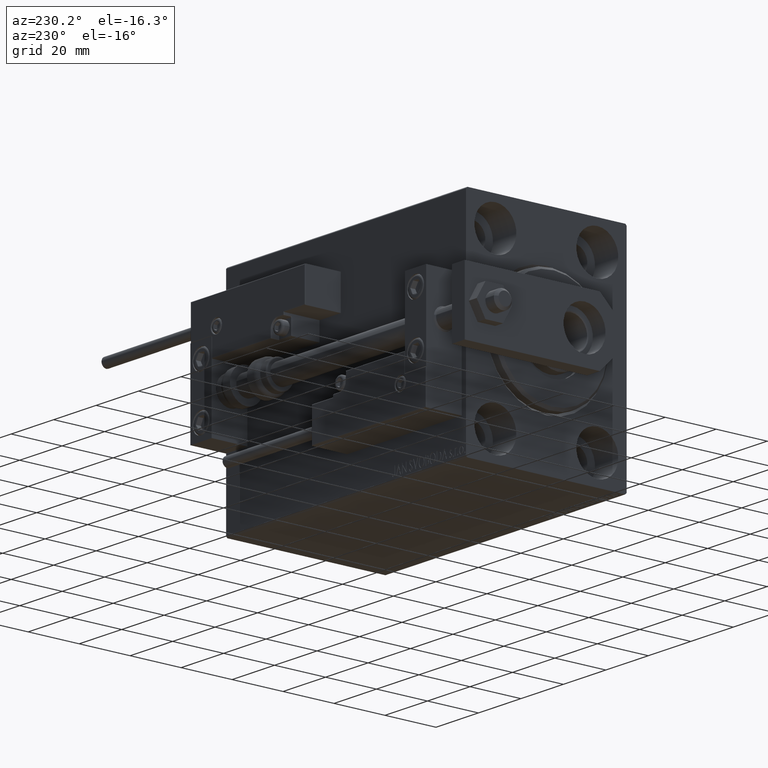
[diagram: clean part render]
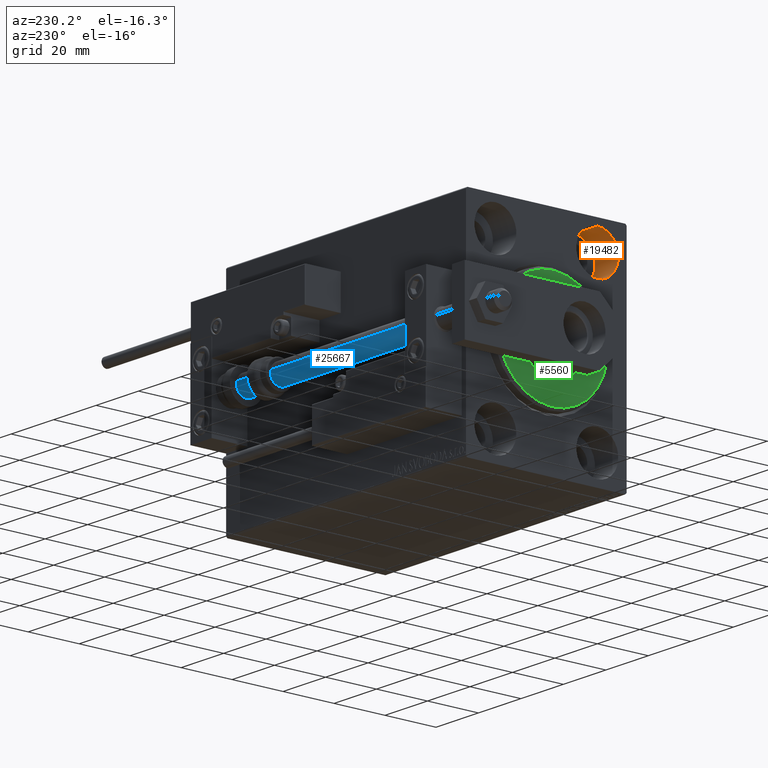
[diagram: same view with three faces highlighted in distinct colors, each labeled with its STEP entity id]
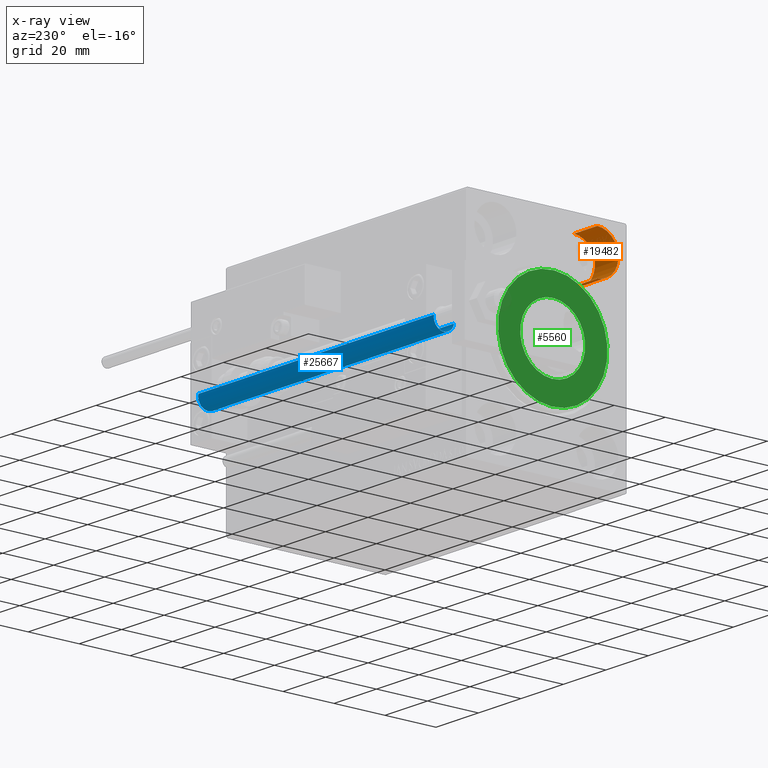
[diagram: x-ray of the same camera — body ghosted, the three highlighted faces saturated]
A machine part, auxiliary view with three faces highlighted in distinct colors.
The next image is the same camera in x-ray (body ghosted, the three faces saturated) — at least one of them is partly hidden behind the body in this view.
Their STEP definitions:

[orange] entity #19482 — the highlighted cylindrical surface (edge-blend (fillet) strip) has radius 8.25 mm, axis along (-1, -0, -0).
#906 = CARTESIAN_POINT ( 'NONE',  ( 11.00000000000000000, -19.99999999999999645, 31.50000000000000000 ) ) ;
#1256 = DIRECTION ( 'NONE',  ( 0.000000000000000000, 0.000000000000000000, 1.000000000000000000 ) ) ;
#1397 = DIRECTION ( 'NONE',  ( 0.000000000000000000, 0.000000000000000000, 1.000000000000000000 ) ) ;
#1634 = DIRECTION ( 'NONE',  ( -1.000000000000000000, -0.000000000000000000, -0.000000000000000000 ) ) ;
#2222 = AXIS2_PLACEMENT_3D ( 'NONE', #906, #28017, #1397 ) ;
#2386 = LINE ( 'NONE', #41142, #8855 ) ;
#5538 = CARTESIAN_POINT ( 'NONE',  ( 11.00000000000000000, -19.99999999999999645, 31.50000000000000000 ) ) ;
#5720 = EDGE_LOOP ( 'NONE', ( #25723, #21564, #9843, #15919 ) ) ;
#5765 = CARTESIAN_POINT ( 'NONE',  ( 0.000000000000000000, -19.99999999999999645, 39.74999999999999289 ) ) ;
#6825 = CARTESIAN_POINT ( 'NONE',  ( 11.00000000000000000, -19.99999999999999645, 39.74999999999999289 ) ) ;
#8600 = CARTESIAN_POINT ( 'NONE',  ( 11.00000000000000000, -19.99999999999999645, 23.25000000000000355 ) ) ;
#8855 = VECTOR ( 'NONE', #1634, 1000.000000000000000 ) ;
#9610 = LINE ( 'NONE', #6825, #31555 ) ;
#9843 = ORIENTED_EDGE ( 'NONE', *, *, #20276, .T. ) ;
#10565 = EDGE_CURVE ( 'NONE', #49992, #47751, #2386, .T. ) ;
#14427 = CIRCLE ( 'NONE', #20877, 8.249999999999992895 ) ;
#15919 = ORIENTED_EDGE ( 'NONE', *, *, #24802, .F. ) ;
#16535 = AXIS2_PLACEMENT_3D ( 'NONE', #5538, #24299, #1256 ) ;
#17219 = DIRECTION ( 'NONE',  ( -1.000000000000000000, -0.000000000000000000, -0.000000000000000000 ) ) ;
#19482 = ADVANCED_FACE ( 'NONE', ( #32553 ), #35855, .F. ) ;
#20276 = EDGE_CURVE ( 'NONE', #47751, #38723, #14427, .T. ) ;
#20877 = AXIS2_PLACEMENT_3D ( 'NONE', #48532, #41175, #33334 ) ;
#21564 = ORIENTED_EDGE ( 'NONE', *, *, #10565, .T. ) ;
#24299 = DIRECTION ( 'NONE',  ( -1.000000000000000000, 0.000000000000000000, 0.000000000000000000 ) ) ;
#24802 = EDGE_CURVE ( 'NONE', #35370, #38723, #9610, .T. ) ;
#25723 = ORIENTED_EDGE ( 'NONE', *, *, #39055, .F. ) ;
#28017 = DIRECTION ( 'NONE',  ( -1.000000000000000000, -0.000000000000000000, -0.000000000000000000 ) ) ;
#28647 = CIRCLE ( 'NONE', #16535, 8.249999999999992895 ) ;
#31555 = VECTOR ( 'NONE', #17219, 1000.000000000000000 ) ;
#32553 = FACE_OUTER_BOUND ( 'NONE', #5720, .T. ) ;
#33334 = DIRECTION ( 'NONE',  ( 0.000000000000000000, 0.000000000000000000, 1.000000000000000000 ) ) ;
#35370 = VERTEX_POINT ( 'NONE', #41383 ) ;
#35855 = CYLINDRICAL_SURFACE ( 'NONE', #2222, 8.249999999999992895 ) ;
#38723 = VERTEX_POINT ( 'NONE', #5765 ) ;
#39055 = EDGE_CURVE ( 'NONE', #49992, #35370, #28647, .T. ) ;
#41142 = CARTESIAN_POINT ( 'NONE',  ( 11.00000000000000000, -19.99999999999999645, 23.25000000000000355 ) ) ;
#41175 = DIRECTION ( 'NONE',  ( -1.000000000000000000, 0.000000000000000000, 0.000000000000000000 ) ) ;
#41383 = CARTESIAN_POINT ( 'NONE',  ( 11.00000000000000000, -19.99999999999999645, 39.74999999999999289 ) ) ;
#45042 = CARTESIAN_POINT ( 'NONE',  ( 0.000000000000000000, -19.99999999999999645, 23.25000000000000355 ) ) ;
#47751 = VERTEX_POINT ( 'NONE', #45042 ) ;
#48532 = CARTESIAN_POINT ( 'NONE',  ( 0.000000000000000000, -19.99999999999999645, 31.50000000000000000 ) ) ;
#49992 = VERTEX_POINT ( 'NONE', #8600 ) ;

[blue] entity #25667 — the highlighted cylindrical surface (edge-blend (fillet) strip) has radius 4 mm, axis along (-1, 0, 0).
#1324 = CARTESIAN_POINT ( 'NONE',  ( 0.000000000000000000, 0.000000000000000000, 2.000000000000029310 ) ) ;
#1527 = CARTESIAN_POINT ( 'NONE',  ( 0.000000000000000000, 0.000000000000000000, 113.0000000000000000 ) ) ;
#4436 = CARTESIAN_POINT ( 'NONE',  ( 0.000000000000000000, 0.000000000000000000, 113.0000000000000000 ) ) ;
#4626 = DIRECTION ( 'NONE',  ( -0.000000000000000000, -0.000000000000000000, 1.000000000000000000 ) ) ;
#5376 = LINE ( 'NONE', #32499, #43413 ) ;
#7132 = CIRCLE ( 'NONE', #26562, 4.000000000000000000 ) ;
#7614 = EDGE_CURVE ( 'NONE', #33119, #23160, #7132, .T. ) ;
#7925 = ORIENTED_EDGE ( 'NONE', *, *, #17533, .F. ) ;
#8123 = AXIS2_PLACEMENT_3D ( 'NONE', #1324, #4626, #36026 ) ;
#8184 = CARTESIAN_POINT ( 'NONE',  ( -4.000000000000000000, 0.000000000000000000, 113.0000000000000000 ) ) ;
#8629 = DIRECTION ( 'NONE',  ( -1.000000000000000000, 0.000000000000000000, 0.000000000000000000 ) ) ;
#9130 = DIRECTION ( 'NONE',  ( -0.000000000000000000, -0.000000000000000000, -1.000000000000000000 ) ) ;
#11482 = DIRECTION ( 'NONE',  ( -0.000000000000000000, -0.000000000000000000, -1.000000000000000000 ) ) ;
#12243 = CARTESIAN_POINT ( 'NONE',  ( 4.000000000000000000, 4.898587196589412829E-16, 2.000000000000029310 ) ) ;
#13519 = ORIENTED_EDGE ( 'NONE', *, *, #13933, .T. ) ;
#13933 = EDGE_CURVE ( 'NONE', #33119, #47714, #46199, .T. ) ;
#17533 = EDGE_CURVE ( 'NONE', #23160, #32114, #5376, .T. ) ;
#19438 = CARTESIAN_POINT ( 'NONE',  ( 4.000000000000000000, 4.898587196589412829E-16, 113.0000000000000000 ) ) ;
#19879 = DIRECTION ( 'NONE',  ( 0.000000000000000000, 0.000000000000000000, 1.000000000000000000 ) ) ;
#21287 = CYLINDRICAL_SURFACE ( 'NONE', #49387, 4.000000000000000000 ) ;
#23160 = VERTEX_POINT ( 'NONE', #19438 ) ;
#25667 = ADVANCED_FACE ( 'NONE', ( #35746 ), #21287, .T. ) ;
#26562 = AXIS2_PLACEMENT_3D ( 'NONE', #4436, #19879, #27492 ) ;
#27492 = DIRECTION ( 'NONE',  ( 1.000000000000000000, 0.000000000000000000, 0.000000000000000000 ) ) ;
#29999 = CIRCLE ( 'NONE', #8123, 4.000000000000000000 ) ;
#32019 = EDGE_LOOP ( 'NONE', ( #7925, #44218, #13519, #34970 ) ) ;
#32114 = VERTEX_POINT ( 'NONE', #12243 ) ;
#32499 = CARTESIAN_POINT ( 'NONE',  ( 4.000000000000000000, 4.898587196589412829E-16, 113.0000000000000000 ) ) ;
#33119 = VERTEX_POINT ( 'NONE', #45971 ) ;
#34970 = ORIENTED_EDGE ( 'NONE', *, *, #46838, .T. ) ;
#35746 = FACE_OUTER_BOUND ( 'NONE', #32019, .T. ) ;
#36026 = DIRECTION ( 'NONE',  ( 1.000000000000000000, 0.000000000000000000, 0.000000000000000000 ) ) ;
#39980 = CARTESIAN_POINT ( 'NONE',  ( -4.000000000000000000, 0.000000000000000000, 2.000000000000029310 ) ) ;
#43413 = VECTOR ( 'NONE', #47454, 1000.000000000000000 ) ;
#44218 = ORIENTED_EDGE ( 'NONE', *, *, #7614, .F. ) ;
#45971 = CARTESIAN_POINT ( 'NONE',  ( -4.000000000000000000, 0.000000000000000000, 113.0000000000000000 ) ) ;
#46199 = LINE ( 'NONE', #8184, #47807 ) ;
#46838 = EDGE_CURVE ( 'NONE', #47714, #32114, #29999, .T. ) ;
#47454 = DIRECTION ( 'NONE',  ( -0.000000000000000000, -0.000000000000000000, -1.000000000000000000 ) ) ;
#47714 = VERTEX_POINT ( 'NONE', #39980 ) ;
#47807 = VECTOR ( 'NONE', #11482, 1000.000000000000000 ) ;
#49387 = AXIS2_PLACEMENT_3D ( 'NONE', #1527, #9130, #8629 ) ;

[green] entity #5560 — the highlighted planar face has unit normal (-1, 0, 0).
#636 = EDGE_CURVE ( 'NONE', #12249, #6148, #35350, .T. ) ;
#2594 = DIRECTION ( 'NONE',  ( 0.000000000000000000, 0.000000000000000000, -1.000000000000000000 ) ) ;
#3131 = ORIENTED_EDGE ( 'NONE', *, *, #14614, .T. ) ;
#3968 = DIRECTION ( 'NONE',  ( 1.000000000000000000, -0.000000000000000000, 0.000000000000000000 ) ) ;
#4473 = DIRECTION ( 'NONE',  ( 0.000000000000000000, 0.000000000000000000, -1.000000000000000000 ) ) ;
#4667 = CARTESIAN_POINT ( 'NONE',  ( 3.000000000000000000, 0.000000000000000000, 12.75000000000000000 ) ) ;
#5272 = DIRECTION ( 'NONE',  ( -1.000000000000000000, 0.000000000000000000, -0.000000000000000000 ) ) ;
#5560 = ADVANCED_FACE ( 'NONE', ( #28035, #47286 ), #20167, .T. ) ;
#6148 = VERTEX_POINT ( 'NONE', #38005 ) ;
#8255 = DIRECTION ( 'NONE',  ( 1.000000000000000000, -0.000000000000000000, 0.000000000000000000 ) ) ;
#9121 = ORIENTED_EDGE ( 'NONE', *, *, #47796, .T. ) ;
#11011 = DIRECTION ( 'NONE',  ( 0.000000000000000000, 0.000000000000000000, -1.000000000000000000 ) ) ;
#11356 = EDGE_CURVE ( 'NONE', #49190, #49724, #19411, .T. ) ;
#11508 = CARTESIAN_POINT ( 'NONE',  ( 3.000000000000000000, 0.000000000000000000, 0.000000000000000000 ) ) ;
#11552 = CARTESIAN_POINT ( 'NONE',  ( 3.000000000000000000, 0.000000000000000000, 0.000000000000000000 ) ) ;
#12249 = VERTEX_POINT ( 'NONE', #4667 ) ;
#13122 = DIRECTION ( 'NONE',  ( 0.000000000000000000, 0.000000000000000000, -1.000000000000000000 ) ) ;
#14614 = EDGE_CURVE ( 'NONE', #49724, #49190, #46320, .T. ) ;
#16167 = AXIS2_PLACEMENT_3D ( 'NONE', #11508, #31029, #11011 ) ;
#17576 = AXIS2_PLACEMENT_3D ( 'NONE', #38686, #3968, #4473 ) ;
#17851 = AXIS2_PLACEMENT_3D ( 'NONE', #21743, #5272, #13122 ) ;
#19411 = CIRCLE ( 'NONE', #16167, 21.50000000000000355 ) ;
#20167 = PLANE ( 'NONE',  #17576 ) ;
#21743 = CARTESIAN_POINT ( 'NONE',  ( 3.000000000000000000, 0.000000000000000000, 0.000000000000000000 ) ) ;
#22754 = CIRCLE ( 'NONE', #17851, 12.75000000000000000 ) ;
#23953 = DIRECTION ( 'NONE',  ( 0.000000000000000000, 0.000000000000000000, -1.000000000000000000 ) ) ;
#24096 = EDGE_LOOP ( 'NONE', ( #3131, #39842 ) ) ;
#27248 = AXIS2_PLACEMENT_3D ( 'NONE', #28937, #38045, #2594 ) ;
#28035 = FACE_OUTER_BOUND ( 'NONE', #24096, .T. ) ;
#28937 = CARTESIAN_POINT ( 'NONE',  ( 3.000000000000000000, 0.000000000000000000, 0.000000000000000000 ) ) ;
#31029 = DIRECTION ( 'NONE',  ( 1.000000000000000000, -0.000000000000000000, 0.000000000000000000 ) ) ;
#35341 = CARTESIAN_POINT ( 'NONE',  ( 3.000000000000000000, 2.694222958124177598E-15, -21.50000000000000355 ) ) ;
#35350 = CIRCLE ( 'NONE', #27248, 12.75000000000000000 ) ;
#37053 = EDGE_LOOP ( 'NONE', ( #45621, #9121 ) ) ;
#38005 = CARTESIAN_POINT ( 'NONE',  ( 3.000000000000000000, 1.561424668912874914E-15, -12.75000000000000000 ) ) ;
#38045 = DIRECTION ( 'NONE',  ( -1.000000000000000000, 0.000000000000000000, -0.000000000000000000 ) ) ;
#38255 = AXIS2_PLACEMENT_3D ( 'NONE', #11552, #8255, #23953 ) ;
#38686 = CARTESIAN_POINT ( 'NONE',  ( 3.000000000000000000, 0.000000000000000000, 0.000000000000000000 ) ) ;
#39842 = ORIENTED_EDGE ( 'NONE', *, *, #11356, .T. ) ;
#44629 = CARTESIAN_POINT ( 'NONE',  ( 3.000000000000000000, 0.000000000000000000, 21.50000000000000355 ) ) ;
#45621 = ORIENTED_EDGE ( 'NONE', *, *, #636, .T. ) ;
#46320 = CIRCLE ( 'NONE', #38255, 21.50000000000000355 ) ;
#47286 = FACE_BOUND ( 'NONE', #37053, .T. ) ;
#47796 = EDGE_CURVE ( 'NONE', #6148, #12249, #22754, .T. ) ;
#49190 = VERTEX_POINT ( 'NONE', #35341 ) ;
#49724 = VERTEX_POINT ( 'NONE', #44629 ) ;